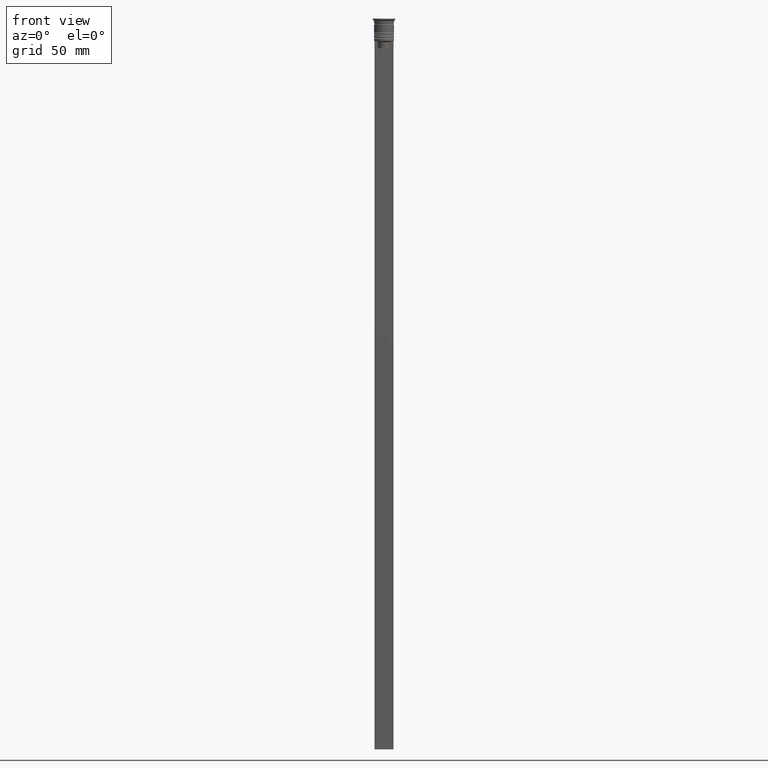
[diagram: clean part render]
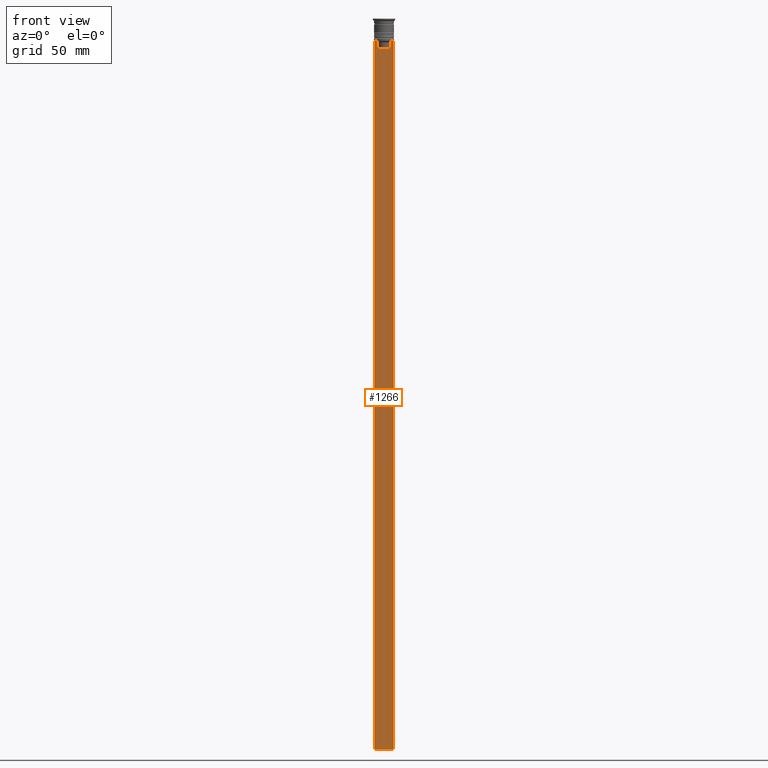
[diagram: same view with one face highlighted and labeled with its STEP entity id]
A machine part, front view. The second image highlights one B-rep face of the part: STEP entity #1266.
In plain terms, the highlighted planar face has unit normal (0, -1, -0).
Its self-contained STEP definition (entity closure, byte-faithful):
#53 = CARTESIAN_POINT ( 'NONE',  ( -2.602402735934616906, -0.5000000000000004441, -10.00000000000000178 ) ) ;
#79 = CARTESIAN_POINT ( 'NONE',  ( 2.602402735934616906, -0.5000000000000004441, 0.000000000000000000 ) ) ;
#80 = ORIENTED_EDGE ( 'NONE', *, *, #1986, .F. ) ;
#154 = VERTEX_POINT ( 'NONE', #465 ) ;
#189 = EDGE_CURVE ( 'NONE', #1398, #2317, #689, .T. ) ;
#199 = CARTESIAN_POINT ( 'NONE',  ( 3.110064308016796453, -0.5000000000000004441, -9.500000000000000000 ) ) ;
#216 = EDGE_CURVE ( 'NONE', #2317, #2349, #631, .T. ) ;
#239 = DIRECTION ( 'NONE',  ( 1.000000000000000000, 0.000000000000000000, 0.000000000000000000 ) ) ;
#264 = CARTESIAN_POINT ( 'NONE',  ( -3.110064308016796453, -0.5000000000000004441, -9.500000000000000000 ) ) ;
#265 = CARTESIAN_POINT ( 'NONE',  ( 4.000000000000005329, -0.5000000000000004441, -9.500000000000000000 ) ) ;
#416 = VECTOR ( 'NONE', #1015, 1000.000000000000000 ) ;
#465 = CARTESIAN_POINT ( 'NONE',  ( 4.000000000000005329, -0.5000000000000004441, -309.5000000000000000 ) ) ;
#471 = ORIENTED_EDGE ( 'NONE', *, *, #1961, .F. ) ;
#472 = LINE ( 'NONE', #2283, #1173 ) ;
#505 = DIRECTION ( 'NONE',  ( 0.000000000000000000, 0.000000000000000000, -1.000000000000000000 ) ) ;
#516 = CARTESIAN_POINT ( 'NONE',  ( 4.000000000000005329, -0.5000000000000004441, -309.5000000000000000 ) ) ;
#537 = ORIENTED_EDGE ( 'NONE', *, *, #189, .F. ) ;
#550 = EDGE_CURVE ( 'NONE', #2369, #1398, #989, .T. ) ;
#551 = CARTESIAN_POINT ( 'NONE',  ( -3.110064308016796453, -0.5000000000000004441, -9.500000000000000000 ) ) ;
#558 = VECTOR ( 'NONE', #831, 1000.000000000000000 ) ;
#584 = ORIENTED_EDGE ( 'NONE', *, *, #550, .F. ) ;
#617 = CARTESIAN_POINT ( 'NONE',  ( 2.602402735934616906, -0.5000000000000004441, -12.50000000000000000 ) ) ;
#621 = LINE ( 'NONE', #2288, #416 ) ;
#631 = LINE ( 'NONE', #265, #1481 ) ;
#651 = ORIENTED_EDGE ( 'NONE', *, *, #1228, .F. ) ;
#659 = VERTEX_POINT ( 'NONE', #1108 ) ;
#674 = AXIS2_PLACEMENT_3D ( 'NONE', #891, #901, #505 ) ;
#689 = B_SPLINE_CURVE_WITH_KNOTS ( 'NONE', 3,
 ( #817, #2091, #2079, #776 ),
 .UNSPECIFIED., .F., .F.,
 ( 4, 4 ),
 ( 0.01295151922336847811, 0.01367164596165162602 ),
 .UNSPECIFIED. ) ;
#724 = LINE ( 'NONE', #516, #2291 ) ;
#739 = VERTEX_POINT ( 'NONE', #2135 ) ;
#776 = CARTESIAN_POINT ( 'NONE',  ( 3.110064308016796453, -0.5000000000000004441, -9.500000000000000000 ) ) ;
#796 = ORIENTED_EDGE ( 'NONE', *, *, #1659, .T. ) ;
#812 = DIRECTION ( 'NONE',  ( -0.000000000000000000, -0.000000000000000000, 1.000000000000000000 ) ) ;
#817 = CARTESIAN_POINT ( 'NONE',  ( 2.602402735934616906, -0.5000000000000004441, -10.00000000000000178 ) ) ;
#819 = LINE ( 'NONE', #1175, #1523 ) ;
#820 = VERTEX_POINT ( 'NONE', #264 ) ;
#831 = DIRECTION ( 'NONE',  ( 0.000000000000000000, 0.000000000000000000, -1.000000000000000000 ) ) ;
#888 = EDGE_LOOP ( 'NONE', ( #1742, #80, #796, #1710, #1510, #1112, #537, #584, #471, #651 ) ) ;
#891 = CARTESIAN_POINT ( 'NONE',  ( 4.000000000000005329, -0.5000000000000004441, -1.437742251701450202 ) ) ;
#901 = DIRECTION ( 'NONE',  ( 0.000000000000000000, -1.000000000000000000, -0.000000000000000000 ) ) ;
#909 = CARTESIAN_POINT ( 'NONE',  ( 4.000000000000005329, -0.5000000000000004441, -9.500000000000000000 ) ) ;
#938 = CARTESIAN_POINT ( 'NONE',  ( -2.771866350855961336, -0.5000000000000004441, -9.833580160334840059 ) ) ;
#953 = EDGE_CURVE ( 'NONE', #154, #1315, #724, .T. ) ;
#989 = LINE ( 'NONE', #79, #1709 ) ;
#1009 = EDGE_CURVE ( 'NONE', #820, #659, #1031, .T. ) ;
#1015 = DIRECTION ( 'NONE',  ( 1.000000000000000000, 0.000000000000000000, 0.000000000000000000 ) ) ;
#1031 = B_SPLINE_CURVE_WITH_KNOTS ( 'NONE', 3,
 ( #551, #1859, #938, #53 ),
 .UNSPECIFIED., .F., .F.,
 ( 4, 4 ),
 ( 0.005378271293598281544, 0.006090816219556000749 ),
 .UNSPECIFIED. ) ;
#1085 = CARTESIAN_POINT ( 'NONE',  ( -3.999999999999994671, -0.5000000000000004441, -9.500000000000000000 ) ) ;
#1108 = CARTESIAN_POINT ( 'NONE',  ( -2.602402735934616906, -0.5000000000000004441, -10.00000000000000178 ) ) ;
#1112 = ORIENTED_EDGE ( 'NONE', *, *, #216, .F. ) ;
#1115 = CARTESIAN_POINT ( 'NONE',  ( 2.602402735934616906, -0.5000000000000004441, -10.00000000000000178 ) ) ;
#1173 = VECTOR ( 'NONE', #1358, 1000.000000000000000 ) ;
#1175 = CARTESIAN_POINT ( 'NONE',  ( 4.000000000000005329, -0.5000000000000004441, -9.500000000000000000 ) ) ;
#1228 = EDGE_CURVE ( 'NONE', #659, #739, #472, .T. ) ;
#1266 = ADVANCED_FACE ( 'NONE', ( #1806 ), #1410, .T. ) ;
#1315 = VERTEX_POINT ( 'NONE', #2378 ) ;
#1358 = DIRECTION ( 'NONE',  ( 0.000000000000000000, 0.000000000000000000, -1.000000000000000000 ) ) ;
#1363 = DIRECTION ( 'NONE',  ( 1.000000000000000000, 0.000000000000000000, 0.000000000000000000 ) ) ;
#1398 = VERTEX_POINT ( 'NONE', #1115 ) ;
#1410 = PLANE ( 'NONE',  #674 ) ;
#1449 = DIRECTION ( 'NONE',  ( 0.000000000000000000, 0.000000000000000000, -1.000000000000000000 ) ) ;
#1481 = VECTOR ( 'NONE', #1363, 1000.000000000000000 ) ;
#1510 = ORIENTED_EDGE ( 'NONE', *, *, #2326, .F. ) ;
#1523 = VECTOR ( 'NONE', #239, 1000.000000000000000 ) ;
#1631 = LINE ( 'NONE', #2088, #2182 ) ;
#1659 = EDGE_CURVE ( 'NONE', #1866, #1315, #1932, .T. ) ;
#1709 = VECTOR ( 'NONE', #812, 1000.000000000000000 ) ;
#1710 = ORIENTED_EDGE ( 'NONE', *, *, #953, .F. ) ;
#1742 = ORIENTED_EDGE ( 'NONE', *, *, #1009, .F. ) ;
#1745 = CARTESIAN_POINT ( 'NONE',  ( -3.999999999999994671, -0.5000000000000004441, -1.437742251701450202 ) ) ;
#1806 = FACE_OUTER_BOUND ( 'NONE', #888, .T. ) ;
#1859 = CARTESIAN_POINT ( 'NONE',  ( -2.941047749529104749, -0.5000000000000004441, -9.666873766989334982 ) ) ;
#1866 = VERTEX_POINT ( 'NONE', #1085 ) ;
#1932 = LINE ( 'NONE', #1745, #558 ) ;
#1961 = EDGE_CURVE ( 'NONE', #739, #2369, #621, .T. ) ;
#1986 = EDGE_CURVE ( 'NONE', #1866, #820, #819, .T. ) ;
#2002 = DIRECTION ( 'NONE',  ( -1.000000000000000000, 0.000000000000000000, 0.000000000000000000 ) ) ;
#2079 = CARTESIAN_POINT ( 'NONE',  ( 2.941045828809988549, -0.5000000000000004441, -9.666875663357577864 ) ) ;
#2088 = CARTESIAN_POINT ( 'NONE',  ( 4.000000000000005329, -0.5000000000000004441, -1.437742251701450202 ) ) ;
#2091 = CARTESIAN_POINT ( 'NONE',  ( 2.771864055700302476, -0.5000000000000004441, -9.833582414266679450 ) ) ;
#2135 = CARTESIAN_POINT ( 'NONE',  ( -2.602402735934616906, -0.5000000000000004441, -12.50000000000000000 ) ) ;
#2182 = VECTOR ( 'NONE', #1449, 1000.000000000000000 ) ;
#2283 = CARTESIAN_POINT ( 'NONE',  ( -2.602402735934616906, -0.5000000000000004441, 0.000000000000000000 ) ) ;
#2288 = CARTESIAN_POINT ( 'NONE',  ( 0.000000000000000000, -0.5000000000000004441, -12.50000000000000000 ) ) ;
#2291 = VECTOR ( 'NONE', #2002, 1000.000000000000000 ) ;
#2317 = VERTEX_POINT ( 'NONE', #199 ) ;
#2326 = EDGE_CURVE ( 'NONE', #2349, #154, #1631, .T. ) ;
#2349 = VERTEX_POINT ( 'NONE', #909 ) ;
#2369 = VERTEX_POINT ( 'NONE', #617 ) ;
#2378 = CARTESIAN_POINT ( 'NONE',  ( -3.999999999999994671, -0.5000000000000004441, -309.5000000000000000 ) ) ;